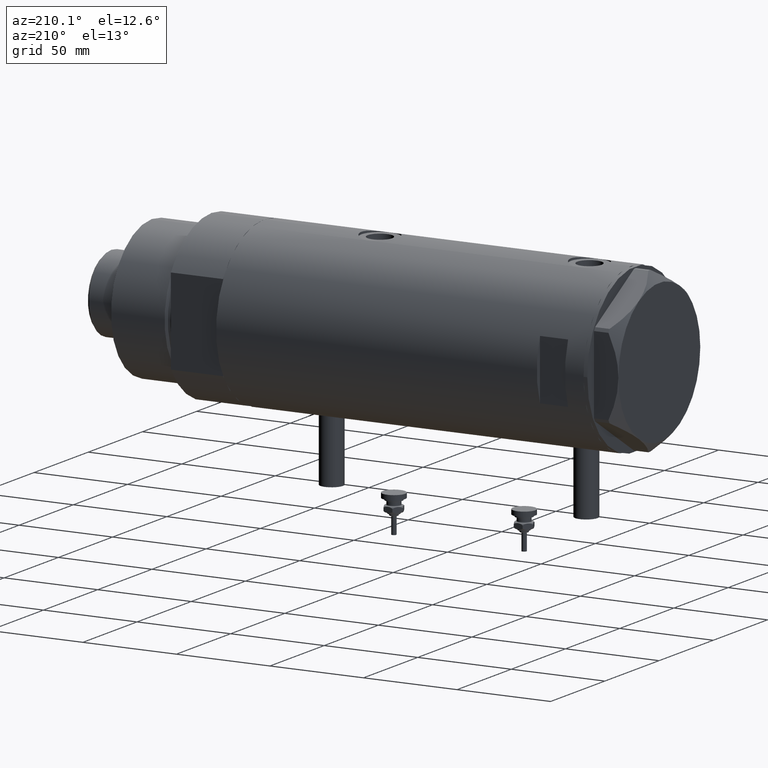
[diagram: clean part render]
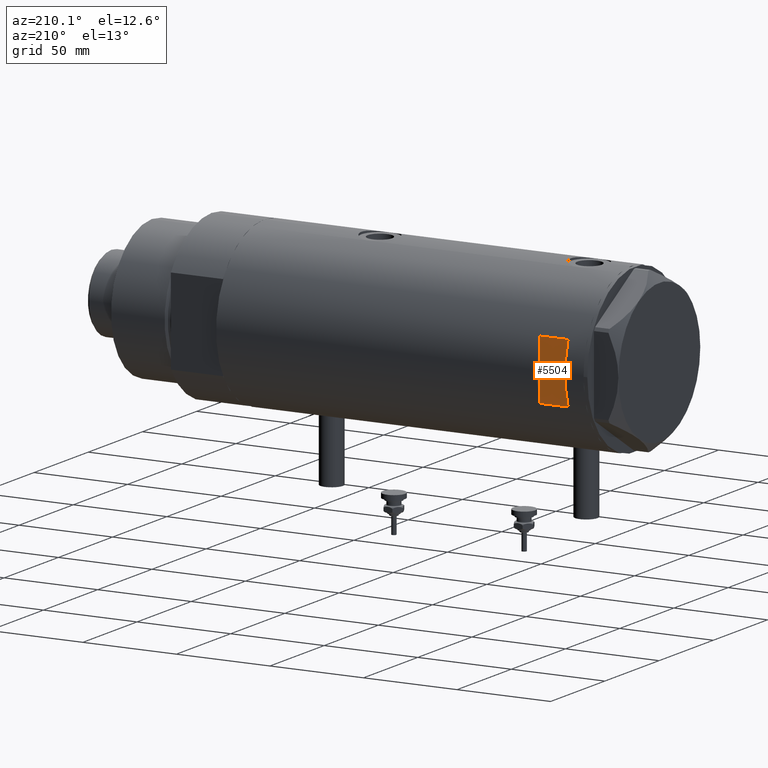
[diagram: same view with one face highlighted and labeled with its STEP entity id]
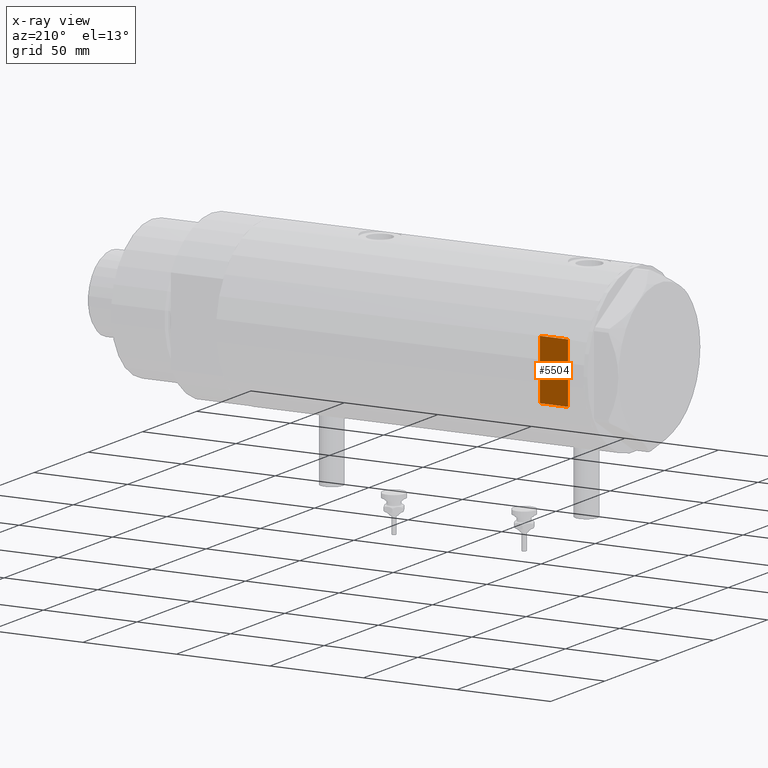
[diagram: x-ray of the same camera — body ghosted, the highlighted face saturated]
A machine part, auxiliary view. The second image highlights one B-rep face of the part: STEP entity #5504.
The next image is the same camera in x-ray: the body ghosted, the highlighted face saturated — about 0% of this face is hidden behind the body in this view.
In plain terms, the highlighted planar face has unit normal (0, -1, -0).
Its self-contained STEP definition (entity closure, byte-faithful):
#437 = DIRECTION ( 'NONE',  ( 0.000000000000000000, -1.000000000000000000, -0.000000000000000000 ) ) ;
#569 = CARTESIAN_POINT ( 'NONE',  ( 15.96871942267132027, 40.99999999999999289, 88.20000000000000284 ) ) ;
#646 = EDGE_CURVE ( 'NONE', #4997, #1689, #2800, .T. ) ;
#649 = DIRECTION ( 'NONE',  ( 1.000000000000000000, -0.000000000000000000, -0.000000000000000000 ) ) ;
#673 = CARTESIAN_POINT ( 'NONE',  ( 15.96871942267132027, 40.99999999999999289, -98.20000000000000284 ) ) ;
#958 = CARTESIAN_POINT ( 'NONE',  ( -15.96871942267132027, 40.99999999999999289, -98.20000000000000284 ) ) ;
#978 = EDGE_LOOP ( 'NONE', ( #4869, #2393, #2425, #2159 ) ) ;
#1264 = DIRECTION ( 'NONE',  ( -0.000000000000000000, -0.000000000000000000, -1.000000000000000000 ) ) ;
#1349 = CARTESIAN_POINT ( 'NONE',  ( -44.00000000000000000, 40.99999999999999289, 88.20000000000000284 ) ) ;
#1689 = VERTEX_POINT ( 'NONE', #5286 ) ;
#1920 = LINE ( 'NONE', #4199, #2083 ) ;
#2046 = LINE ( 'NONE', #673, #3245 ) ;
#2083 = VECTOR ( 'NONE', #2434, 1000.000000000000000 ) ;
#2091 = CARTESIAN_POINT ( 'NONE',  ( 15.96871942267132027, 40.99999999999999289, 73.20000000000000284 ) ) ;
#2159 = ORIENTED_EDGE ( 'NONE', *, *, #3097, .T. ) ;
#2393 = ORIENTED_EDGE ( 'NONE', *, *, #4692, .F. ) ;
#2425 = ORIENTED_EDGE ( 'NONE', *, *, #646, .T. ) ;
#2434 = DIRECTION ( 'NONE',  ( 1.000000000000000000, -0.000000000000000000, -0.000000000000000000 ) ) ;
#2675 = LINE ( 'NONE', #4520, #3836 ) ;
#2800 = LINE ( 'NONE', #958, #2929 ) ;
#2929 = VECTOR ( 'NONE', #5955, 1000.000000000000000 ) ;
#3044 = EDGE_CURVE ( 'NONE', #5113, #4127, #2046, .T. ) ;
#3097 = EDGE_CURVE ( 'NONE', #1689, #5113, #2675, .T. ) ;
#3245 = VECTOR ( 'NONE', #1264, 1000.000000000000000 ) ;
#3737 = DIRECTION ( 'NONE',  ( 0.000000000000000000, 0.000000000000000000, -1.000000000000000000 ) ) ;
#3836 = VECTOR ( 'NONE', #649, 1000.000000000000000 ) ;
#4103 = CARTESIAN_POINT ( 'NONE',  ( -15.96871942267132027, 40.99999999999999289, 73.20000000000000284 ) ) ;
#4127 = VERTEX_POINT ( 'NONE', #2091 ) ;
#4128 = PLANE ( 'NONE',  #4316 ) ;
#4199 = CARTESIAN_POINT ( 'NONE',  ( -44.00000000000000000, 40.99999999999999289, 73.20000000000000284 ) ) ;
#4316 = AXIS2_PLACEMENT_3D ( 'NONE', #1349, #437, #3737 ) ;
#4520 = CARTESIAN_POINT ( 'NONE',  ( -44.00000000000000000, 40.99999999999999289, 88.20000000000000284 ) ) ;
#4609 = FACE_OUTER_BOUND ( 'NONE', #978, .T. ) ;
#4692 = EDGE_CURVE ( 'NONE', #4997, #4127, #1920, .T. ) ;
#4869 = ORIENTED_EDGE ( 'NONE', *, *, #3044, .T. ) ;
#4997 = VERTEX_POINT ( 'NONE', #4103 ) ;
#5113 = VERTEX_POINT ( 'NONE', #569 ) ;
#5286 = CARTESIAN_POINT ( 'NONE',  ( -15.96871942267132027, 40.99999999999999289, 88.20000000000000284 ) ) ;
#5504 = ADVANCED_FACE ( 'NONE', ( #4609 ), #4128, .F. ) ;
#5955 = DIRECTION ( 'NONE',  ( 0.000000000000000000, 0.000000000000000000, 1.000000000000000000 ) ) ;